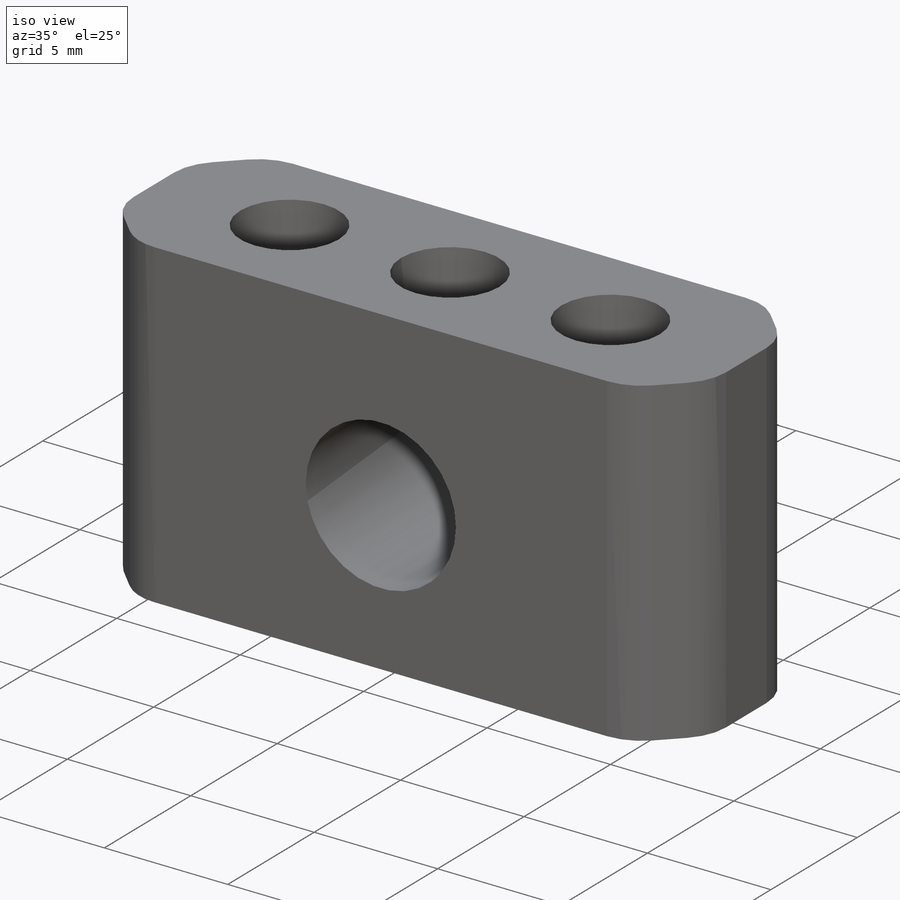
[diagram: iso view]
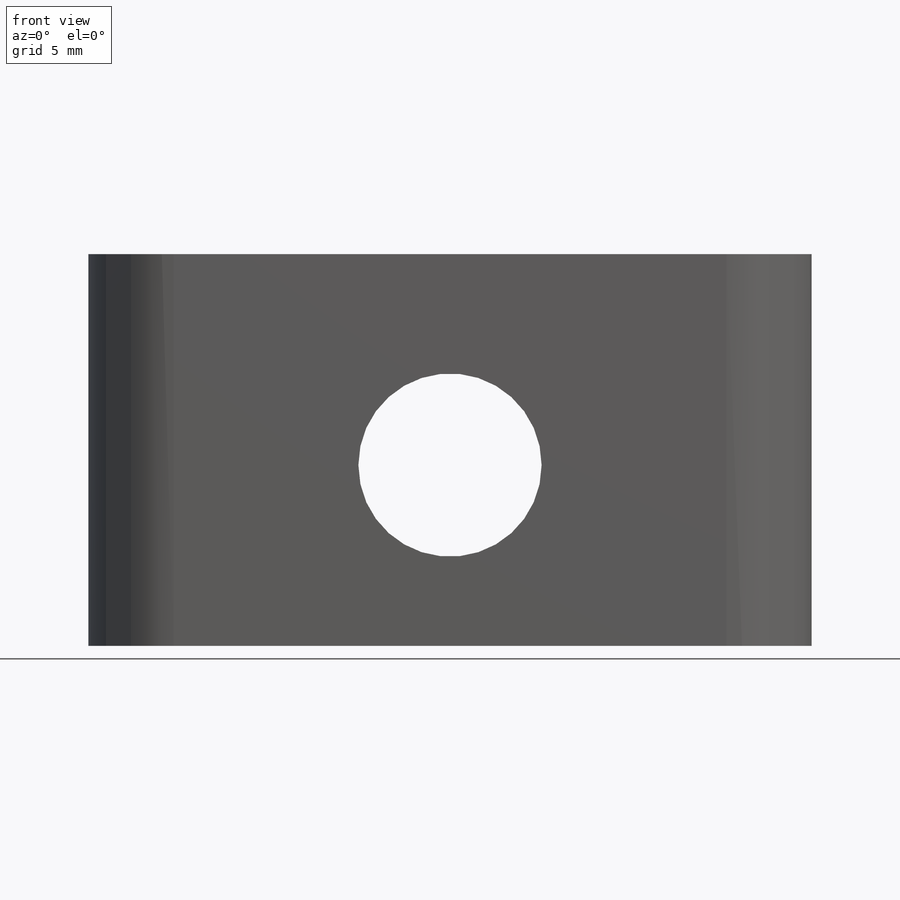
[diagram: front view]
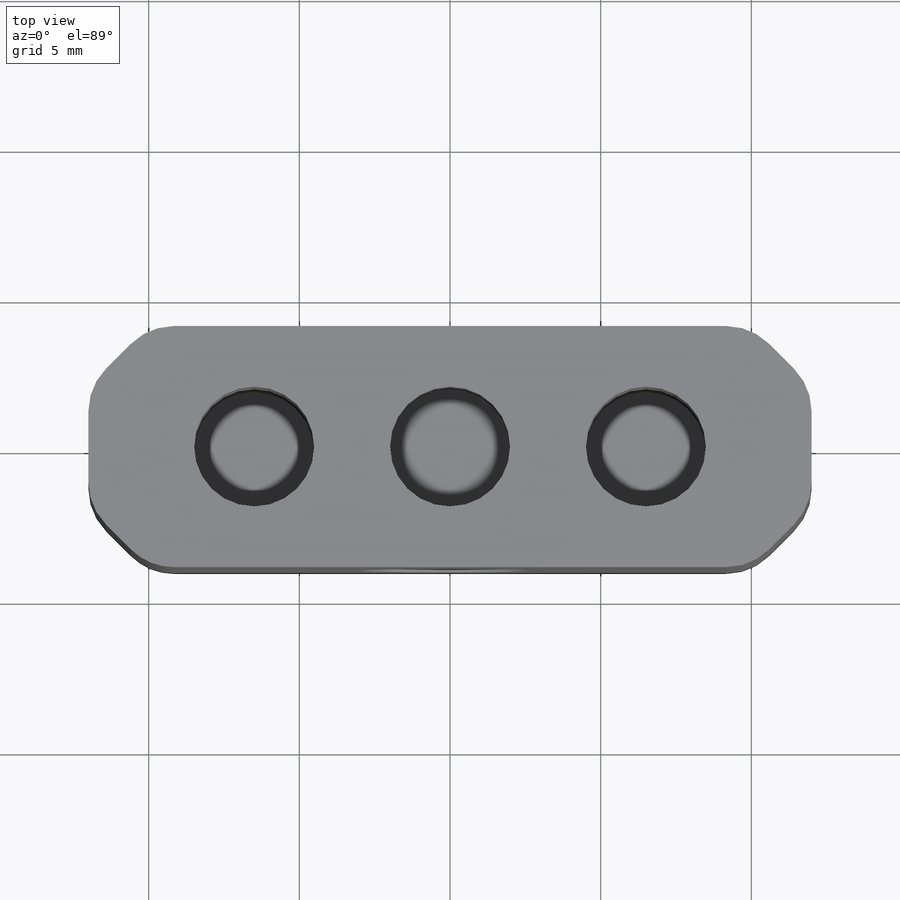
[diagram: top view]
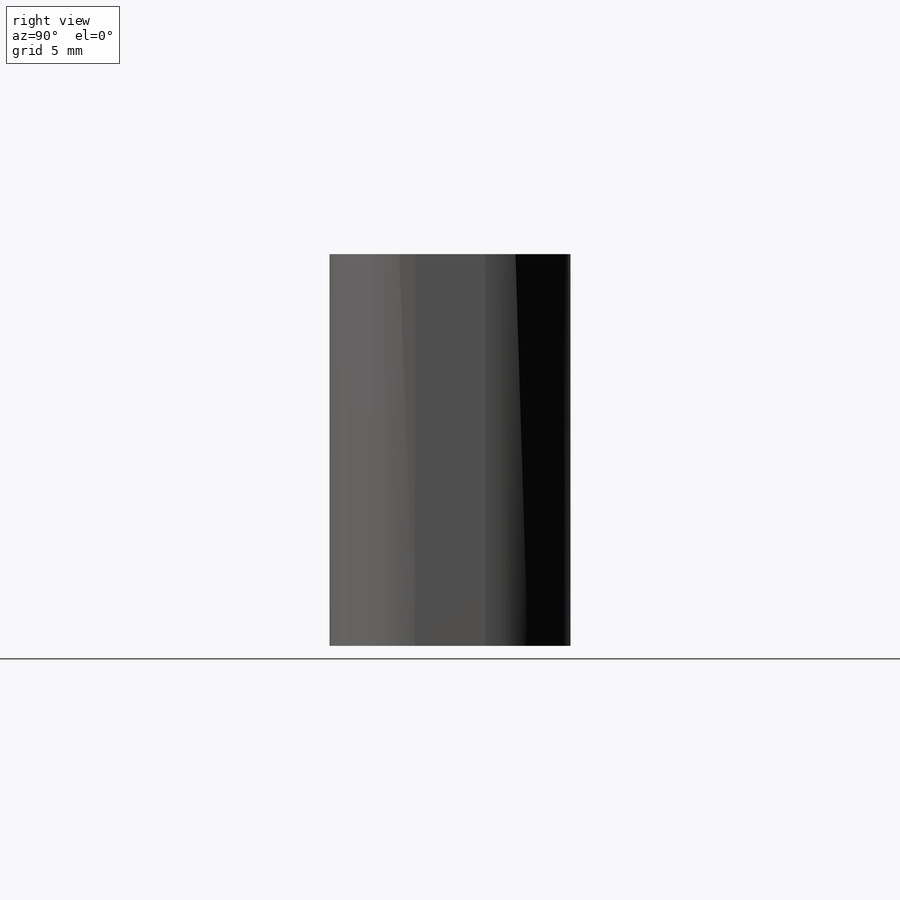
[diagram: right view]
SOLIDWORKS PART (.sldprt)
format: sldprt  version: not decoded by parser v0  size: 223,744 bytes
history: native  units: mm
features: sketch x4, cut_extrude x3, material x1, extrude x1, chamfer x1, fillet x1 (+12 scaffold rows collapsed)
feature tree (23):
  scaffold x12  (default folders/planes/origin — collapsed)
  material  "Material <not specified>"
  sketch  "Sketch1"  dims[D1=24.0mm D2=13.0mm]
  extrude  "Boss-Extrude1"  Depth=4mm
  sketch  "Sketch3"  dims[D1=6.08mm D2=6.0mm]
  cut_extrude  "Cut-Extrude1"  Depth=7mm
  sketch  "Sketch4"  dims[c1.D1=3.98mm c1.D2=4.0mm c1.D3=4.0mm c2.D2=5.5mm c2.D3=4.0mm c3.D2=13.0mm]
  cut_extrude  "Cut-Extrude2"  Depth=10mm
  sketch  "Sketch5"
  cut_extrude  "Cut-Extrude4"  Depth=3.9mm
  chamfer  "Chamfer1"  Distance=2mm Angle=45deg
  fillet  "Fillet1"  Radius=2mm
decode coverage: 9 of 10 modeling features carry decoded parameters
note: suppression state not decoded; provenance and decode notes live in map.json
